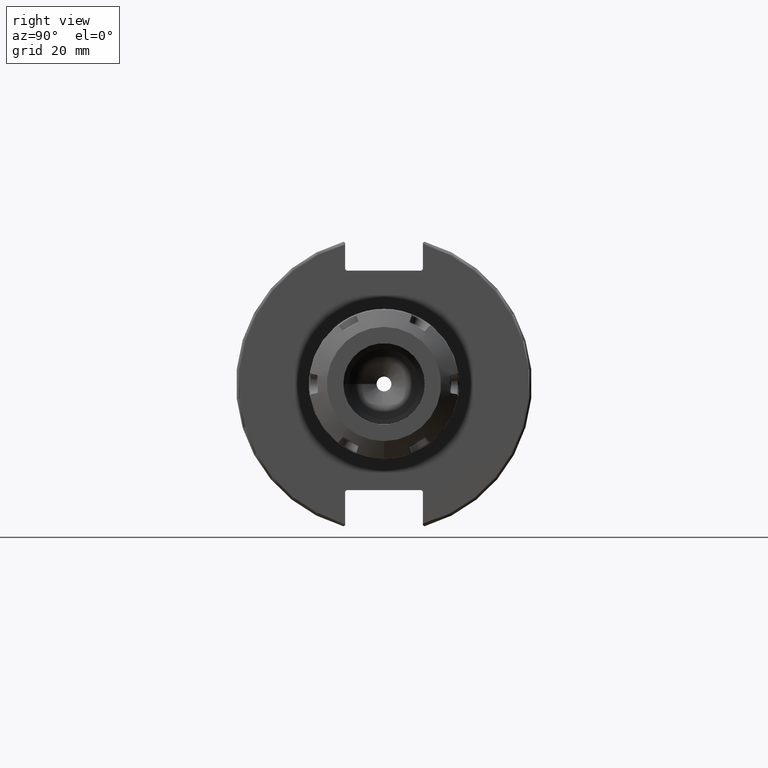
[diagram: clean part render]
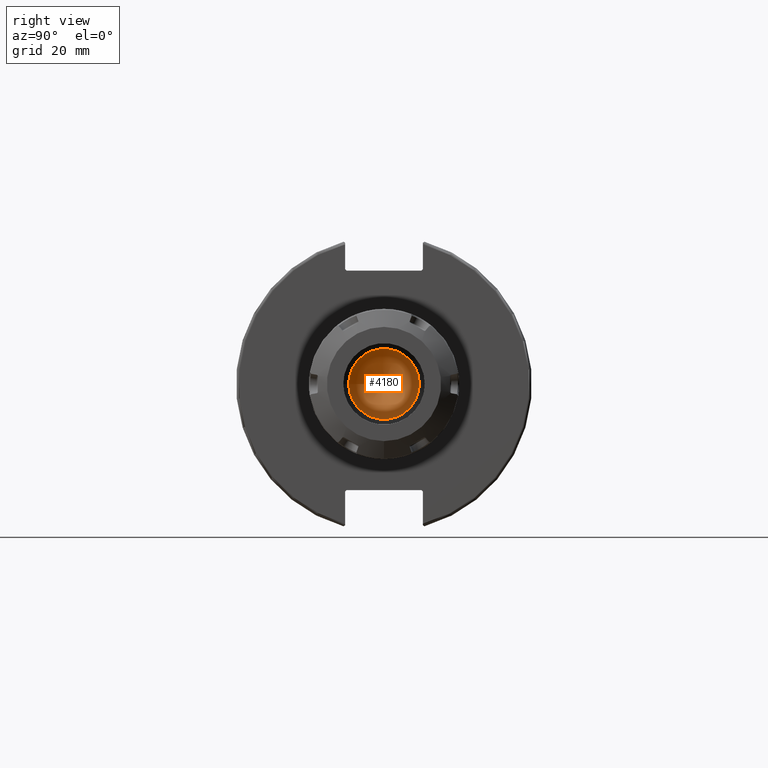
[diagram: same view with one face highlighted and labeled with its STEP entity id]
A machine part, right view. The second image highlights one B-rep face of the part: STEP entity #4180.
In plain terms, the highlighted conical surface has half-angle 60 deg.
Its self-contained STEP definition (entity closure, byte-faithful):
#590=FACE_OUTER_BOUND('',#887,.T.);
#887=EDGE_LOOP('',(#3478,#3479,#3480,#3481,#3482));
#1149=LINE('',#7487,#1391);
#1391=VECTOR('',#5687,5.875);
#1638=CIRCLE('',#4714,2.4585);
#1639=CIRCLE('',#4715,2.4585);
#1640=CIRCLE('',#4717,11.75);
#1976=VERTEX_POINT('',#7477);
#1977=VERTEX_POINT('',#7479);
#1978=VERTEX_POINT('',#7483);
#2499=EDGE_CURVE('',#1977,#1976,#1638,.T.);
#2500=EDGE_CURVE('',#1976,#1977,#1639,.T.);
#2502=EDGE_CURVE('',#1978,#1978,#1640,.T.);
#2503=EDGE_CURVE('',#1978,#1977,#1149,.T.);
#3478=ORIENTED_EDGE('',*,*,#2502,.T.);
#3479=ORIENTED_EDGE('',*,*,#2503,.T.);
#3480=ORIENTED_EDGE('',*,*,#2499,.T.);
#3481=ORIENTED_EDGE('',*,*,#2500,.T.);
#3482=ORIENTED_EDGE('',*,*,#2503,.F.);
#4008=CONICAL_SURFACE('',#4718,5.875,1.0471975511966);
#4180=ADVANCED_FACE('',(#590),#4008,.F.);
#4714=AXIS2_PLACEMENT_3D('',#7480,#5676,#5677);
#4715=AXIS2_PLACEMENT_3D('',#7481,#5678,#5679);
#4717=AXIS2_PLACEMENT_3D('',#7485,#5683,#5684);
#4718=AXIS2_PLACEMENT_3D('',#7486,#5685,#5686);
#5676=DIRECTION('center_axis',(-1.,0.,0.));
#5677=DIRECTION('ref_axis',(0.,0.,1.));
#5678=DIRECTION('center_axis',(-1.,0.,0.));
#5679=DIRECTION('ref_axis',(0.,0.,1.));
#5683=DIRECTION('center_axis',(1.,0.,0.));
#5684=DIRECTION('ref_axis',(0.,0.,-1.));
#5685=DIRECTION('center_axis',(1.,0.,0.));
#5686=DIRECTION('ref_axis',(0.,1.,0.));
#5687=DIRECTION('',(-0.5,0.866025403784438,1.06057523872491E-16));
#7477=CARTESIAN_POINT('',(-10.8644500261754,-3.01079415570377E-16,-2.4585));
#7479=CARTESIAN_POINT('',(-10.8644500261754,-2.4585,-3.01079415570377E-16));
#7480=CARTESIAN_POINT('Origin',(-10.8644500261754,0.,0.));
#7481=CARTESIAN_POINT('Origin',(-10.8644500261754,0.,0.));
#7483=CARTESIAN_POINT('',(-5.5,-11.75,-1.43895998899814E-15));
#7485=CARTESIAN_POINT('Origin',(-5.5,0.,0.));
#7486=CARTESIAN_POINT('Origin',(-8.89193283148905,0.,0.));
#7487=CARTESIAN_POINT('',(-8.89193283148905,-5.875,-7.1947999449907E-16));